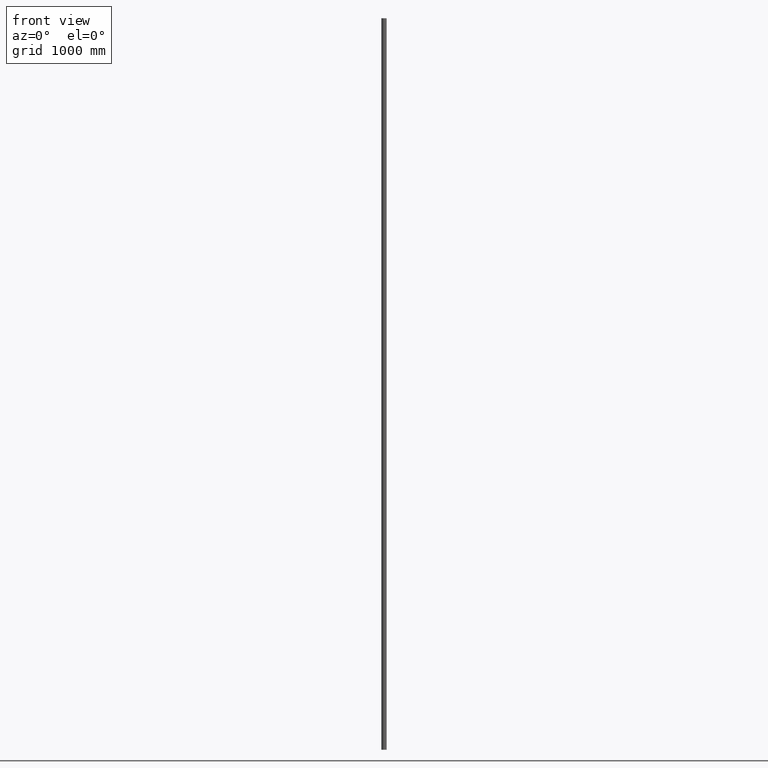
[diagram: clean part render]
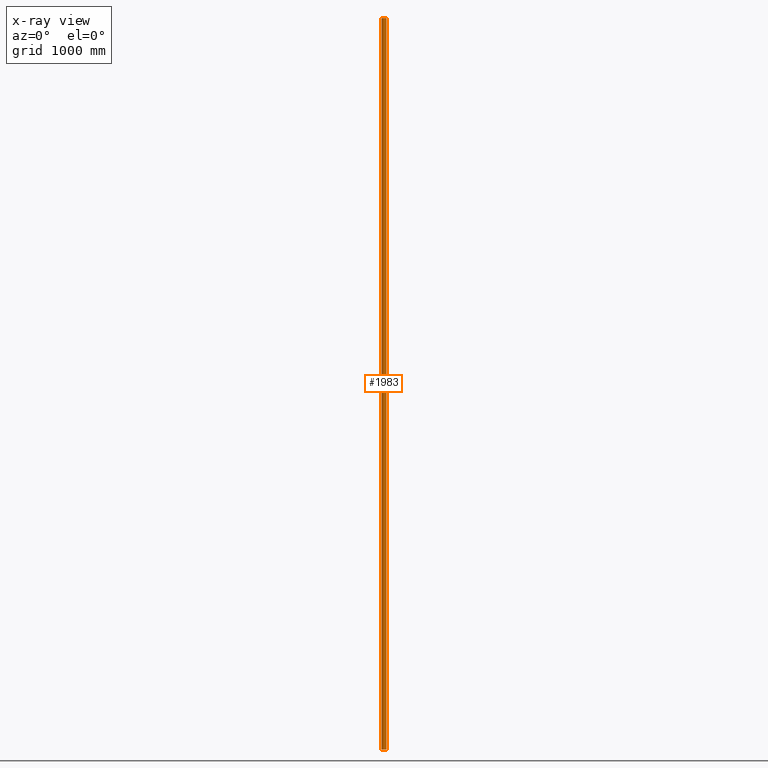
[diagram: x-ray — body ghosted, one internal face saturated and labeled with its STEP entity id]
A machine part, front view, then the same camera in x-ray: the body is ghosted and one INTERNAL B-rep face — a face not visible from any outside direction — is saturated and labeled: STEP entity #1983.
In plain terms, the highlighted cylindrical surface (bore or boss wall) has radius 21.2 mm, axis along (-0, -0, -1).
Its self-contained STEP definition (entity closure, byte-faithful):
#1983 = ADVANCED_FACE ( 'NONE', ( #9915, #8199 ), #11963, .T. ) ;
#3863 = ORIENTED_EDGE ( 'NONE', *, *, #12982, .F. ) ;
#4437 = VERTEX_POINT ( 'NONE', #13505 ) ;
#4442 = DIRECTION ( 'NONE',  ( 1.000000000000000000, 0.000000000000000000, 0.000000000000000000 ) ) ;
#5941 = CARTESIAN_POINT ( 'NONE',  ( 0.000000000000000000, 0.000000000000000000, 3000.000000000000000 ) ) ;
#7162 = DIRECTION ( 'NONE',  ( -0.000000000000000000, -0.000000000000000000, -1.000000000000000000 ) ) ;
#7400 = VERTEX_POINT ( 'NONE', #14281 ) ;
#7750 = DIRECTION ( 'NONE',  ( 1.000000000000000000, 0.000000000000000000, 0.000000000000000000 ) ) ;
#7851 = DIRECTION ( 'NONE',  ( 0.000000000000000000, 0.000000000000000000, 1.000000000000000000 ) ) ;
#7896 = AXIS2_PLACEMENT_3D ( 'NONE', #12056, #13178, #4442 ) ;
#8125 = CIRCLE ( 'NONE', #8718, 21.19999999999999929 ) ;
#8199 = FACE_OUTER_BOUND ( 'NONE', #8221, .T. ) ;
#8221 = EDGE_LOOP ( 'NONE', ( #8893 ) ) ;
#8637 = CIRCLE ( 'NONE', #7896, 21.19999999999999929 ) ;
#8718 = AXIS2_PLACEMENT_3D ( 'NONE', #11079, #7851, #7750 ) ;
#8893 = ORIENTED_EDGE ( 'NONE', *, *, #11858, .T. ) ;
#9915 = FACE_OUTER_BOUND ( 'NONE', #13122, .T. ) ;
#11061 = AXIS2_PLACEMENT_3D ( 'NONE', #5941, #7162, #11498 ) ;
#11079 = CARTESIAN_POINT ( 'NONE',  ( 0.000000000000000000, 0.000000000000000000, -3000.000000000000000 ) ) ;
#11498 = DIRECTION ( 'NONE',  ( -1.000000000000000000, 0.000000000000000000, 0.000000000000000000 ) ) ;
#11858 = EDGE_CURVE ( 'NONE', #4437, #4437, #8125, .T. ) ;
#11963 = CYLINDRICAL_SURFACE ( 'NONE', #11061, 21.19999999999999929 ) ;
#12056 = CARTESIAN_POINT ( 'NONE',  ( 0.000000000000000000, 0.000000000000000000, 3000.000000000000000 ) ) ;
#12982 = EDGE_CURVE ( 'NONE', #7400, #7400, #8637, .T. ) ;
#13122 = EDGE_LOOP ( 'NONE', ( #3863 ) ) ;
#13178 = DIRECTION ( 'NONE',  ( 0.000000000000000000, 0.000000000000000000, 1.000000000000000000 ) ) ;
#13505 = CARTESIAN_POINT ( 'NONE',  ( 21.19999999999999929, 0.000000000000000000, -3000.000000000000000 ) ) ;
#14281 = CARTESIAN_POINT ( 'NONE',  ( 21.19999999999999929, 0.000000000000000000, 3000.000000000000000 ) ) ;